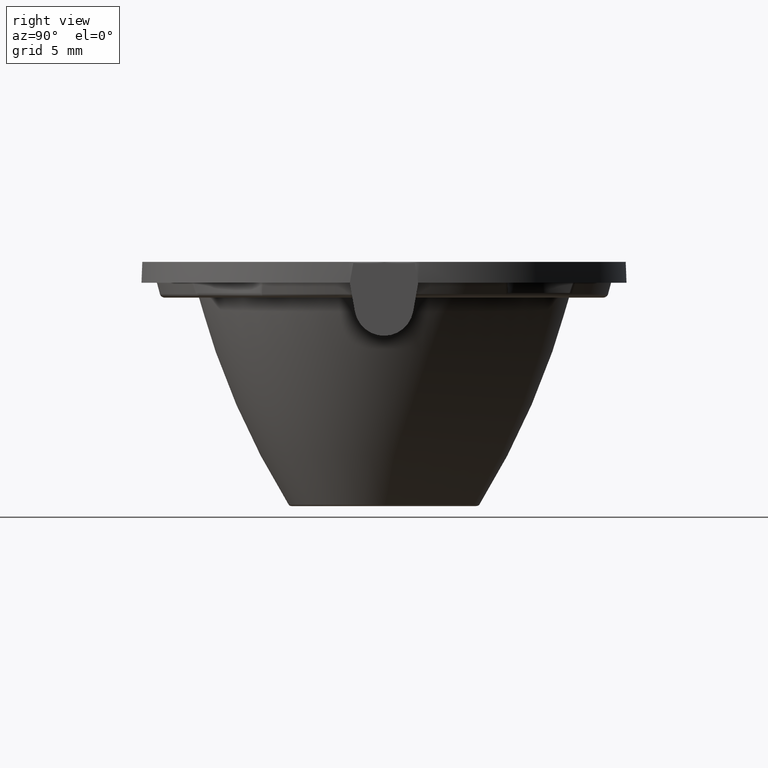
[diagram: clean part render]
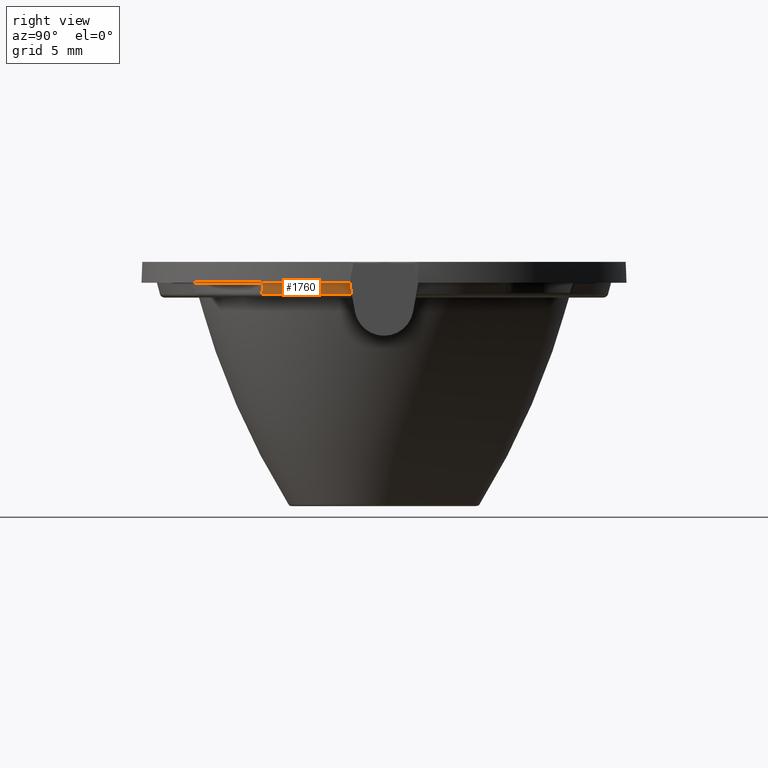
[diagram: same view with one face highlighted and labeled with its STEP entity id]
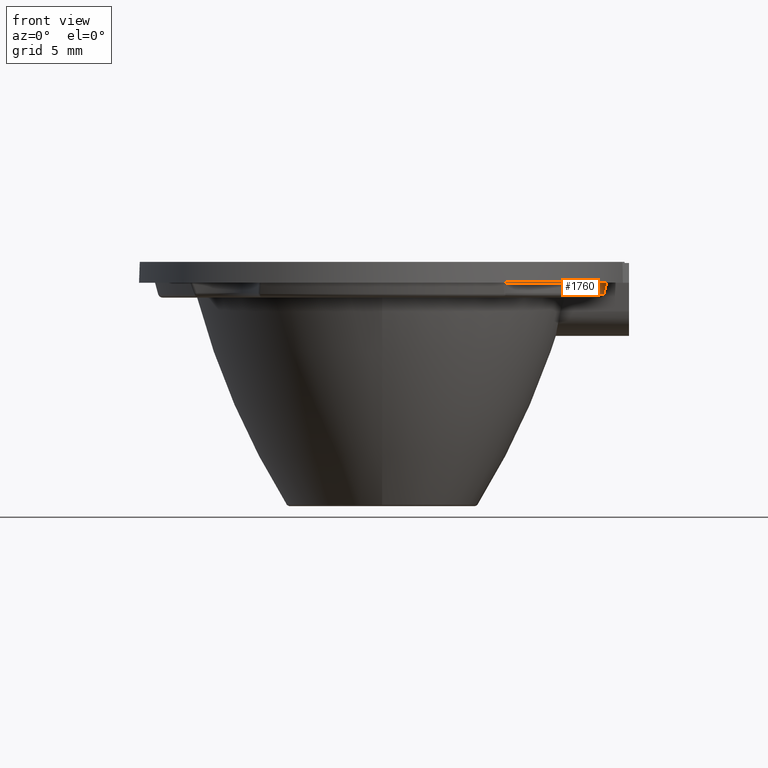
[diagram: same view with one face highlighted and labeled with its STEP entity id]
A machine part, right view. The second image highlights one B-rep face of the part: STEP entity #1760.
A second angle (front view) of the same face is appended — the face is thin or edge-on in the first view.
In plain terms, the highlighted conical surface has half-angle 15 deg.
Its self-contained STEP definition (entity closure, byte-faithful):
#105 = DIRECTION ( 'NONE',  ( -0.0000000000000000000, -0.0000000000000000000, 1.000000000000000000 ) ) ;
#110 = ORIENTED_EDGE ( 'NONE', *, *, #486, .T. ) ;
#148 = CARTESIAN_POINT ( 'NONE',  ( 7.613368264972778299, -4.946105674557367493, 10.34823619097949710 ) ) ;
#179 = CARTESIAN_POINT ( 'NONE',  ( 2.474107080390835270E-32, 1.524758820474980809E-15, 10.80000000000000071 ) ) ;
#221 = CARTESIAN_POINT ( 'NONE',  ( 7.778042542225271916, -4.913456442397124313, 10.80000000000000071 ) ) ;
#258 = DIRECTION ( 'NONE',  ( -1.000000000000000000, 0.0000000000000000000, 0.0000000000000000000 ) ) ;
#262 = ORIENTED_EDGE ( 'NONE', *, *, #470, .T. ) ;
#282 = CARTESIAN_POINT ( 'NONE',  ( 7.701751815660452749, -4.927345837744413259, 10.58737290264147290 ) ) ;
#303 = B_SPLINE_CURVE_WITH_KNOTS ( 'NONE', 3,
 ( #1173, #1622, #282, #909, #455, #1021, #1649 ),
 .UNSPECIFIED., .F., .F.,
 ( 4, 3, 4 ),
 ( 4.770655143303379482E-16, 0.0003394792412466367151, 0.0004819544678531662973 ),
 .UNSPECIFIED. ) ;
#370 = ORIENTED_EDGE ( 'NONE', *, *, #1634, .T. ) ;
#379 = VERTEX_POINT ( 'NONE', #1065 ) ;
#416 = CARTESIAN_POINT ( 'NONE',  ( 2.474107080390835270E-32, 1.524758820474980809E-15, 10.80000000000000071 ) ) ;
#427 = CONICAL_SURFACE ( 'NONE', #1731, 9.199999999999999289, 0.2617993877991500740 ) ;
#455 = CARTESIAN_POINT ( 'NONE',  ( 7.646406173676421503, -4.938862520715977311, 10.43699561909817852 ) ) ;
#470 = EDGE_CURVE ( 'NONE', #1598, #379, #1088, .T. ) ;
#486 = EDGE_CURVE ( 'NONE', #1281, #1153, #303, .T. ) ;
#533 = EDGE_LOOP ( 'NONE', ( #110, #370, #262, #1609 ) ) ;
#568 = FACE_OUTER_BOUND ( 'NONE', #533, .T. ) ;
#596 = DIRECTION ( 'NONE',  ( -0.0000000000000000000, -0.0000000000000000000, 1.000000000000000000 ) ) ;
#602 = CARTESIAN_POINT ( 'NONE',  ( 9.021382102844702544, -1.332914264945690430, 10.49880785812326423 ) ) ;
#665 = EDGE_CURVE ( 'NONE', #379, #1281, #1744, .T. ) ;
#777 = CARTESIAN_POINT ( 'NONE',  ( 8.984472699645737137, -1.306364417498039776, 10.34823619097977243 ) ) ;
#780 = DIRECTION ( 'NONE',  ( 0.0000000000000000000, 0.0000000000000000000, -1.000000000000000000 ) ) ;
#883 = CARTESIAN_POINT ( 'NONE',  ( 2.474107080390835270E-32, 1.524758820474980809E-15, 10.34823619097949710 ) ) ;
#890 = CARTESIAN_POINT ( 'NONE',  ( 8.984472699645737137, -1.306364417498039776, 10.34823619097977243 ) ) ;
#901 = CARTESIAN_POINT ( 'NONE',  ( 9.094995406635254298, -1.386022565935929762, 10.80000000000000071 ) ) ;
#909 = CARTESIAN_POINT ( 'NONE',  ( 7.662767586173282908, -4.935457931051127289, 10.48145051523831306 ) ) ;
#1021 = CARTESIAN_POINT ( 'NONE',  ( 7.629941697455311811, -4.942409360604448132, 10.39258913270174389 ) ) ;
#1065 = CARTESIAN_POINT ( 'NONE',  ( 9.094995406635254298, -1.386022565935929762, 10.80000000000000071 ) ) ;
#1088 = B_SPLINE_CURVE_WITH_KNOTS ( 'NONE', 3,
 ( #890, #602, #1780, #901 ),
 .UNSPECIFIED., .F., .F.,
 ( 4, 4 ),
 ( 0.0001550613214130479084, 0.0006269206475494008141 ),
 .UNSPECIFIED. ) ;
#1153 = VERTEX_POINT ( 'NONE', #148 ) ;
#1173 = CARTESIAN_POINT ( 'NONE',  ( 7.778042542225271916, -4.913456442397124313, 10.80000000000000071 ) ) ;
#1233 = AXIS2_PLACEMENT_3D ( 'NONE', #179, #780, #1366 ) ;
#1281 = VERTEX_POINT ( 'NONE', #221 ) ;
#1351 = CIRCLE ( 'NONE', #1570, 9.078950252203350502 ) ;
#1366 = DIRECTION ( 'NONE',  ( -1.000000000000000000, 0.0000000000000000000, 0.0000000000000000000 ) ) ;
#1570 = AXIS2_PLACEMENT_3D ( 'NONE', #883, #596, #1614 ) ;
#1598 = VERTEX_POINT ( 'NONE', #777 ) ;
#1609 = ORIENTED_EDGE ( 'NONE', *, *, #665, .T. ) ;
#1614 = DIRECTION ( 'NONE',  ( 1.000000000000000000, 0.0000000000000000000, 0.0000000000000000000 ) ) ;
#1622 = CARTESIAN_POINT ( 'NONE',  ( 7.740154142585914165, -4.920039607599632880, 10.69357509939631967 ) ) ;
#1634 = EDGE_CURVE ( 'NONE', #1153, #1598, #1351, .T. ) ;
#1649 = CARTESIAN_POINT ( 'NONE',  ( 7.613368264972778299, -4.946105674557367493, 10.34823619097949710 ) ) ;
#1731 = AXIS2_PLACEMENT_3D ( 'NONE', #416, #105, #258 ) ;
#1744 = CIRCLE ( 'NONE', #1233, 9.199999999999999289 ) ;
#1760 = ADVANCED_FACE ( 'NONE', ( #568 ), #427, .T. ) ;
#1780 = CARTESIAN_POINT ( 'NONE',  ( 9.058222194534302218, -1.359467020578239094, 10.64939601840289463 ) ) ;